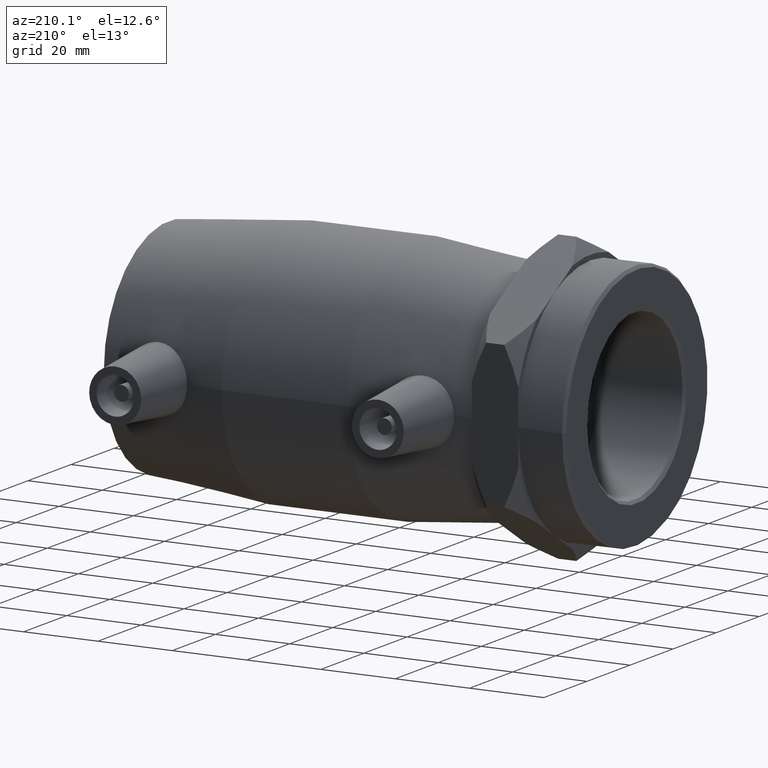
[diagram: clean part render]
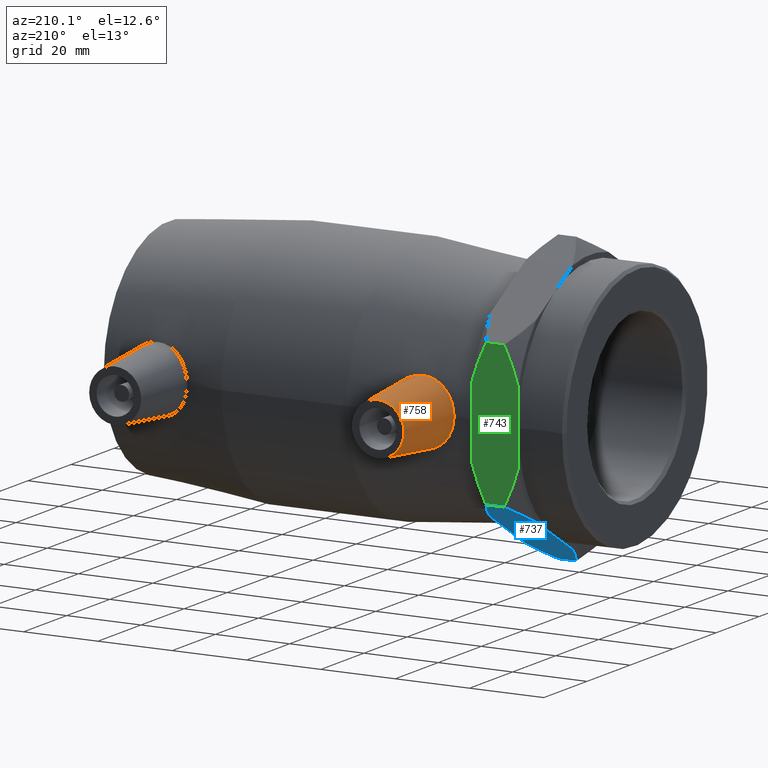
[diagram: same view with three faces highlighted in distinct colors, each labeled with its STEP entity id]
A machine part, auxiliary view with three faces highlighted in distinct colors.
Their STEP definitions:

[orange] entity #758 — the highlighted conical surface has half-angle 5 deg.
#16=B_SPLINE_CURVE_WITH_KNOTS('',3,(#1375,#1376,#1377,#1378,#1379,#1380,
#1381,#1382,#1383,#1384,#1385,#1386,#1387,#1388,#1389,#1390,#1391,#1392,
#1393,#1394,#1395,#1396,#1397,#1398,#1399,#1400,#1401,#1402,#1403,#1404,
#1405,#1406,#1407,#1408),.UNSPECIFIED.,.T.,.F.,(4,2,2,2,2,2,2,2,2,2,2,2,
2,2,2,2,4),(0.,0.323120499511999,0.646240999023999,0.971518984508685,1.29679696999337,
1.62207495547806,1.94735294096274,2.27047344047474,2.59359393998674,2.93729543235928,
3.28099692473182,3.61782069974539,3.95464447475896,4.29146824977254,4.62829202478611,
4.97199351715865,5.31569500953119),.UNSPECIFIED.);
#143=FACE_BOUND('',#274,.T.);
#199=FACE_OUTER_BOUND('',#273,.T.);
#273=EDGE_LOOP('',(#674));
#274=EDGE_LOOP('',(#675));
#329=CIRCLE('',#850,7.);
#398=VERTEX_POINT('',#1332);
#401=VERTEX_POINT('',#1374);
#493=EDGE_CURVE('',#398,#398,#329,.T.);
#496=EDGE_CURVE('',#401,#401,#16,.T.);
#674=ORIENTED_EDGE('',*,*,#493,.T.);
#675=ORIENTED_EDGE('',*,*,#496,.F.);
#708=CONICAL_SURFACE('',#854,7.,5.);
#758=ADVANCED_FACE('',(#199,#143),#708,.T.);
#850=AXIS2_PLACEMENT_3D('',#1333,#1057,#1058);
#854=AXIS2_PLACEMENT_3D('',#1373,#1065,#1066);
#1057=DIRECTION('center_axis',(0.,-1.,0.));
#1058=DIRECTION('ref_axis',(1.,0.,0.));
#1065=DIRECTION('center_axis',(0.,-1.,0.));
#1066=DIRECTION('ref_axis',(1.,0.,0.));
#1332=CARTESIAN_POINT('',(-42.35,51.,8.57252759403147E-16));
#1333=CARTESIAN_POINT('Origin',(-35.35,51.,0.));
#1373=CARTESIAN_POINT('Origin',(-35.35,51.,0.));
#1374=CARTESIAN_POINT('',(-35.6671886307007,30.3773904597837,8.79852904851299));
#1375=CARTESIAN_POINT('Ctrl Pts',(-35.6671886307007,30.3773904597837,8.79852904851299));
#1376=CARTESIAN_POINT('Ctrl Pts',(-36.7389640812576,30.2749537692277,8.76885921236681));
#1377=CARTESIAN_POINT('Ctrl Pts',(-37.879401717365,30.2304776062026,8.52339862615001));
#1378=CARTESIAN_POINT('Ctrl Pts',(-39.9668860140409,30.262944935348,7.5947666050826));
#1379=CARTESIAN_POINT('Ctrl Pts',(-40.9140788542704,30.3360778524557,6.91179446762884));
#1380=CARTESIAN_POINT('Ctrl Pts',(-42.406794360669,30.4982208570224,5.35717232340341));
#1381=CARTESIAN_POINT('Ctrl Pts',(-43.0528093111661,30.597943446048,4.37791662310557));
#1382=CARTESIAN_POINT('Ctrl Pts',(-43.9087505336002,30.742818161528,2.24157963899443));
#1383=CARTESIAN_POINT('Ctrl Pts',(-44.1185848733033,30.7849823962703,1.08425995161562));
#1384=CARTESIAN_POINT('Ctrl Pts',(-44.1185848733033,30.7849823962703,-1.08425995161562));
#1385=CARTESIAN_POINT('Ctrl Pts',(-43.9087505336002,30.742818161528,-2.24157963899443));
#1386=CARTESIAN_POINT('Ctrl Pts',(-43.0528093111661,30.597943446048,-4.37791662310557));
#1387=CARTESIAN_POINT('Ctrl Pts',(-42.406794360669,30.4982208570224,-5.35717232340341));
#1388=CARTESIAN_POINT('Ctrl Pts',(-40.9140788542704,30.3360778524557,-6.91179446762884));
#1389=CARTESIAN_POINT('Ctrl Pts',(-39.9668860140409,30.262944935348,-7.5947666050826));
#1390=CARTESIAN_POINT('Ctrl Pts',(-37.879401717365,30.2304776062026,-8.52339862615001));
#1391=CARTESIAN_POINT('Ctrl Pts',(-36.7389640812576,30.2749537692277,-8.76885921236681));
#1392=CARTESIAN_POINT('Ctrl Pts',(-34.5271469979322,30.4863518022889,-8.83008868950542));
#1393=CARTESIAN_POINT('Ctrl Pts',(-33.3200839499548,30.674268183196,-8.62298550936632));
#1394=CARTESIAN_POINT('Ctrl Pts',(-31.1104534237076,31.1373033650582,-7.73260105010648));
#1395=CARTESIAN_POINT('Ctrl Pts',(-30.1068287812536,31.4083006258617,-7.04980507731292));
#1396=CARTESIAN_POINT('Ctrl Pts',(-28.5383247413678,31.8778221183829,-5.47975321124123));
#1397=CARTESIAN_POINT('Ctrl Pts',(-27.8611902221542,32.1086415172993,-4.49200533932273));
#1398=CARTESIAN_POINT('Ctrl Pts',(-26.958168971404,32.4286967165414,-2.31382049434863));
#1399=CARTESIAN_POINT('Ctrl Pts',(-26.7327683113098,32.5149572125875,-1.12274591671191));
#1400=CARTESIAN_POINT('Ctrl Pts',(-26.7327683113098,32.5149572125875,1.12274591671191));
#1401=CARTESIAN_POINT('Ctrl Pts',(-26.958168971404,32.4286967165414,2.31382049434863));
#1402=CARTESIAN_POINT('Ctrl Pts',(-27.8611902221542,32.1086415172993,4.49200533932273));
#1403=CARTESIAN_POINT('Ctrl Pts',(-28.5383247413678,31.8778221183829,5.47975321124123));
#1404=CARTESIAN_POINT('Ctrl Pts',(-30.1068287812536,31.4083006258617,7.04980507731292));
#1405=CARTESIAN_POINT('Ctrl Pts',(-31.1104534237076,31.1373033650582,7.73260105010648));
#1406=CARTESIAN_POINT('Ctrl Pts',(-33.3200839499548,30.674268183196,8.62298550936632));
#1407=CARTESIAN_POINT('Ctrl Pts',(-34.5271469979322,30.4863518022889,8.83008868950542));
#1408=CARTESIAN_POINT('Ctrl Pts',(-35.6671886307007,30.3773904597837,8.79852904851299));

[blue] entity #737 — the highlighted planar face has unit normal (0, 0.5, -0.866).
#18=LINE('',#1264,#42);
#19=LINE('',#1266,#43);
#25=LINE('',#1275,#49);
#29=LINE('',#1280,#53);
#30=LINE('',#1281,#54);
#42=VECTOR('',#966,9.72299214552678);
#43=VECTOR('',#969,9.72299214552678);
#49=VECTOR('',#981,4.90000000000002);
#53=VECTOR('',#987,4.90000000000002);
#54=VECTOR('',#988,19.4459842910536);
#70=(
BOUNDED_CURVE()
B_SPLINE_CURVE(2,(#1159,#1160,#1161),.UNSPECIFIED.,.F.,.F.)
B_SPLINE_CURVE_WITH_KNOTS((3,3),(0.,1.03535849599883),.UNSPECIFIED.)
CURVE()
GEOMETRIC_REPRESENTATION_ITEM()
RATIONAL_B_SPLINE_CURVE((1.,1.00865828191503,1.))
REPRESENTATION_ITEM('')
);
#75=(
BOUNDED_CURVE()
B_SPLINE_CURVE(2,(#1188,#1189,#1190),.UNSPECIFIED.,.F.,.F.)
B_SPLINE_CURVE_WITH_KNOTS((3,3),(0.,1.03535849599883),.UNSPECIFIED.)
CURVE()
GEOMETRIC_REPRESENTATION_ITEM()
RATIONAL_B_SPLINE_CURVE((1.,1.00865828191501,1.))
REPRESENTATION_ITEM('')
);
#86=(
BOUNDED_CURVE()
B_SPLINE_CURVE(2,(#1248,#1249,#1250),.UNSPECIFIED.,.F.,.F.)
B_SPLINE_CURVE_WITH_KNOTS((3,3),(0.,1.03535849599883),.UNSPECIFIED.)
CURVE()
GEOMETRIC_REPRESENTATION_ITEM()
RATIONAL_B_SPLINE_CURVE((1.,1.00865828191498,1.))
REPRESENTATION_ITEM('')
);
#87=(
BOUNDED_CURVE()
B_SPLINE_CURVE(2,(#1254,#1255,#1256),.UNSPECIFIED.,.F.,.F.)
B_SPLINE_CURVE_WITH_KNOTS((3,3),(0.,1.03535849599883),.UNSPECIFIED.)
CURVE()
GEOMETRIC_REPRESENTATION_ITEM()
RATIONAL_B_SPLINE_CURVE((1.,1.00865828191503,1.))
REPRESENTATION_ITEM('')
);
#106=PLANE('',#820);
#178=FACE_OUTER_BOUND('',#240,.T.);
#240=EDGE_LOOP('',(#584,#585,#586,#587,#588,#589,#590,#591,#592));
#346=VERTEX_POINT('',#1119);
#357=VERTEX_POINT('',#1153);
#359=VERTEX_POINT('',#1158);
#366=VERTEX_POINT('',#1186);
#367=VERTEX_POINT('',#1187);
#382=VERTEX_POINT('',#1242);
#383=VERTEX_POINT('',#1246);
#384=VERTEX_POINT('',#1252);
#385=VERTEX_POINT('',#1253);
#429=EDGE_CURVE('',#359,#357,#70,.T.);
#437=EDGE_CURVE('',#366,#367,#75,.T.);
#454=EDGE_CURVE('',#382,#383,#86,.T.);
#455=EDGE_CURVE('',#384,#385,#87,.T.);
#459=EDGE_CURVE('',#346,#367,#18,.T.);
#460=EDGE_CURVE('',#359,#346,#19,.T.);
#466=EDGE_CURVE('',#385,#366,#25,.T.);
#470=EDGE_CURVE('',#382,#357,#29,.T.);
#471=EDGE_CURVE('',#383,#384,#30,.T.);
#584=ORIENTED_EDGE('',*,*,#437,.T.);
#585=ORIENTED_EDGE('',*,*,#459,.F.);
#586=ORIENTED_EDGE('',*,*,#460,.F.);
#587=ORIENTED_EDGE('',*,*,#429,.T.);
#588=ORIENTED_EDGE('',*,*,#470,.F.);
#589=ORIENTED_EDGE('',*,*,#454,.T.);
#590=ORIENTED_EDGE('',*,*,#471,.T.);
#591=ORIENTED_EDGE('',*,*,#455,.T.);
#592=ORIENTED_EDGE('',*,*,#466,.T.);
#737=ADVANCED_FACE('',(#178),#106,.T.);
#820=AXIS2_PLACEMENT_3D('',#1279,#985,#986);
#966=DIRECTION('',(0.,-0.866025403784438,-0.500000000000001));
#969=DIRECTION('',(0.,-0.866025403784438,-0.500000000000001));
#981=DIRECTION('',(-1.,0.,0.));
#985=DIRECTION('center_axis',(0.,0.500000000000001,-0.866025403784438));
#986=DIRECTION('ref_axis',(0.,-0.866025403784438,-0.500000000000001));
#987=DIRECTION('',(-1.,0.,0.));
#988=DIRECTION('',(0.,-0.866025403784438,-0.500000000000001));
#1119=CARTESIAN_POINT('',(-63.,16.75,-29.0118510267787));
#1153=CARTESIAN_POINT('',(-59.2,33.5,-19.3412340178524));
#1158=CARTESIAN_POINT('',(-63.,25.1703581988228,-24.1503549540153));
#1159=CARTESIAN_POINT('Ctrl Pts',(-63.,25.1703581988228,-24.1503549540153));
#1160=CARTESIAN_POINT('Ctrl Pts',(-61.7287681445462,29.1200450930844,-21.8700021623986));
#1161=CARTESIAN_POINT('Ctrl Pts',(-59.2,33.5,-19.3412340178524));
#1186=CARTESIAN_POINT('',(-59.2,4.88498130835069E-14,-38.6824680357049));
#1187=CARTESIAN_POINT('',(-63.,8.32964180117729,-33.8733470995421));
#1188=CARTESIAN_POINT('Ctrl Pts',(-59.2,5.60434388960021E-14,-38.6824680357049));
#1189=CARTESIAN_POINT('Ctrl Pts',(-61.7287681445462,4.37995490691574,-36.1536998911587));
#1190=CARTESIAN_POINT('Ctrl Pts',(-63.,8.32964180117726,-33.8733470995421));
#1242=CARTESIAN_POINT('',(-54.3,33.5,-19.3412340178524));
#1246=CARTESIAN_POINT('',(-50.5,25.1703581988228,-24.1503549540153));
#1248=CARTESIAN_POINT('Ctrl Pts',(-54.3,33.5,-19.3412340178524));
#1249=CARTESIAN_POINT('Ctrl Pts',(-51.7712318554538,29.1200450930843,-21.8700021623986));
#1250=CARTESIAN_POINT('Ctrl Pts',(-50.5,25.1703581988228,-24.1503549540153));
#1252=CARTESIAN_POINT('',(-50.5,8.32964180117729,-33.8733470995421));
#1253=CARTESIAN_POINT('',(-54.3,4.21884749357559E-14,-38.6824680357049));
#1254=CARTESIAN_POINT('Ctrl Pts',(-50.5,8.32964180117728,-33.8733470995421));
#1255=CARTESIAN_POINT('Ctrl Pts',(-51.7712318554538,4.37995490691577,-36.1536998911587));
#1256=CARTESIAN_POINT('Ctrl Pts',(-54.3,7.00542986200027E-14,-38.6824680357049));
#1264=CARTESIAN_POINT('',(-63.,33.5,-19.3412340178524));
#1266=CARTESIAN_POINT('',(-63.,33.5,-19.3412340178524));
#1275=CARTESIAN_POINT('',(-50.5,5.19510080595559E-14,-38.6824680357049));
#1279=CARTESIAN_POINT('Origin',(-50.5,33.5,-19.3412340178524));
#1280=CARTESIAN_POINT('',(-50.5,33.5,-19.3412340178524));
#1281=CARTESIAN_POINT('',(-50.5,33.5,-19.3412340178524));

[green] entity #743 — the highlighted planar face has unit normal (0, 1, 0).
#20=LINE('',#1267,#44);
#29=LINE('',#1280,#53);
#31=LINE('',#1283,#55);
#36=LINE('',#1290,#60);
#40=LINE('',#1297,#64);
#44=VECTOR('',#970,9.72299214552682);
#53=VECTOR('',#987,4.90000000000002);
#55=VECTOR('',#991,9.72299214552682);
#60=VECTOR('',#1000,4.90000000000002);
#64=VECTOR('',#1010,19.4459842910536);
#65=(
BOUNDED_CURVE()
B_SPLINE_CURVE(2,(#1133,#1134,#1135),.UNSPECIFIED.,.F.,.F.)
B_SPLINE_CURVE_WITH_KNOTS((3,3),(0.,1.03535849599883),.UNSPECIFIED.)
CURVE()
GEOMETRIC_REPRESENTATION_ITEM()
RATIONAL_B_SPLINE_CURVE((1.,1.00865828191498,1.))
REPRESENTATION_ITEM('')
);
#69=(
BOUNDED_CURVE()
B_SPLINE_CURVE(2,(#1155,#1156,#1157),.UNSPECIFIED.,.F.,.F.)
B_SPLINE_CURVE_WITH_KNOTS((3,3),(0.,1.03535849599883),.UNSPECIFIED.)
CURVE()
GEOMETRIC_REPRESENTATION_ITEM()
RATIONAL_B_SPLINE_CURVE((1.,1.008658281915,1.))
REPRESENTATION_ITEM('')
);
#81=(
BOUNDED_CURVE()
B_SPLINE_CURVE(2,(#1221,#1222,#1223),.UNSPECIFIED.,.F.,.F.)
B_SPLINE_CURVE_WITH_KNOTS((3,3),(0.,1.03535849599883),.UNSPECIFIED.)
CURVE()
GEOMETRIC_REPRESENTATION_ITEM()
RATIONAL_B_SPLINE_CURVE((1.,1.00865828191498,1.))
REPRESENTATION_ITEM('')
);
#85=(
BOUNDED_CURVE()
B_SPLINE_CURVE(2,(#1243,#1244,#1245),.UNSPECIFIED.,.F.,.F.)
B_SPLINE_CURVE_WITH_KNOTS((3,3),(0.,1.03535849599883),.UNSPECIFIED.)
CURVE()
GEOMETRIC_REPRESENTATION_ITEM()
RATIONAL_B_SPLINE_CURVE((1.,1.00865828191497,1.))
REPRESENTATION_ITEM('')
);
#112=PLANE('',#826);
#184=FACE_OUTER_BOUND('',#246,.T.);
#246=EDGE_LOOP('',(#628,#629,#630,#631,#632,#633,#634,#635,#636));
#345=VERTEX_POINT('',#1118);
#351=VERTEX_POINT('',#1131);
#352=VERTEX_POINT('',#1132);
#357=VERTEX_POINT('',#1153);
#358=VERTEX_POINT('',#1154);
#375=VERTEX_POINT('',#1219);
#376=VERTEX_POINT('',#1220);
#381=VERTEX_POINT('',#1241);
#382=VERTEX_POINT('',#1242);
#422=EDGE_CURVE('',#351,#352,#65,.T.);
#428=EDGE_CURVE('',#357,#358,#69,.T.);
#446=EDGE_CURVE('',#375,#376,#81,.T.);
#452=EDGE_CURVE('',#381,#382,#85,.T.);
#461=EDGE_CURVE('',#345,#358,#20,.T.);
#470=EDGE_CURVE('',#382,#357,#29,.T.);
#472=EDGE_CURVE('',#351,#345,#31,.T.);
#477=EDGE_CURVE('',#375,#352,#36,.T.);
#481=EDGE_CURVE('',#376,#381,#40,.T.);
#628=ORIENTED_EDGE('',*,*,#428,.T.);
#629=ORIENTED_EDGE('',*,*,#461,.F.);
#630=ORIENTED_EDGE('',*,*,#472,.F.);
#631=ORIENTED_EDGE('',*,*,#422,.T.);
#632=ORIENTED_EDGE('',*,*,#477,.F.);
#633=ORIENTED_EDGE('',*,*,#446,.T.);
#634=ORIENTED_EDGE('',*,*,#481,.T.);
#635=ORIENTED_EDGE('',*,*,#452,.T.);
#636=ORIENTED_EDGE('',*,*,#470,.T.);
#743=ADVANCED_FACE('',(#184),#112,.T.);
#826=AXIS2_PLACEMENT_3D('',#1296,#1008,#1009);
#970=DIRECTION('',(0.,1.60725239458925E-15,-1.));
#987=DIRECTION('',(-1.,0.,0.));
#991=DIRECTION('',(0.,1.60725239458925E-15,-1.));
#1000=DIRECTION('',(-1.,0.,0.));
#1008=DIRECTION('center_axis',(0.,1.,1.60725239458925E-15));
#1009=DIRECTION('ref_axis',(0.,1.4210854715202E-15,-1.));
#1010=DIRECTION('',(0.,1.60725239458925E-15,-1.));
#1118=CARTESIAN_POINT('',(-63.,33.5,5.38429552187397E-14));
#1131=CARTESIAN_POINT('',(-63.,33.5,9.72299214552687));
#1132=CARTESIAN_POINT('',(-59.2,33.5,19.3412340178525));
#1133=CARTESIAN_POINT('Ctrl Pts',(-63.,33.5,9.72299214552688));
#1134=CARTESIAN_POINT('Ctrl Pts',(-61.7287681445462,33.5,14.2836977287602));
#1135=CARTESIAN_POINT('Ctrl Pts',(-59.2,33.5,19.3412340178525));
#1153=CARTESIAN_POINT('',(-59.2,33.5,-19.3412340178524));
#1154=CARTESIAN_POINT('',(-63.,33.5,-9.72299214552676));
#1155=CARTESIAN_POINT('Ctrl Pts',(-59.2,33.5,-19.3412340178524));
#1156=CARTESIAN_POINT('Ctrl Pts',(-61.7287681445462,33.5,-14.2836977287601));
#1157=CARTESIAN_POINT('Ctrl Pts',(-63.,33.5,-9.72299214552678));
#1219=CARTESIAN_POINT('',(-54.3,33.5,19.3412340178525));
#1220=CARTESIAN_POINT('',(-50.5,33.5,9.72299214552687));
#1221=CARTESIAN_POINT('Ctrl Pts',(-54.3,33.5,19.3412340178525));
#1222=CARTESIAN_POINT('Ctrl Pts',(-51.7712318554538,33.5,14.2836977287601));
#1223=CARTESIAN_POINT('Ctrl Pts',(-50.5,33.5,9.72299214552688));
#1241=CARTESIAN_POINT('',(-50.5,33.5,-9.72299214552676));
#1242=CARTESIAN_POINT('',(-54.3,33.5,-19.3412340178524));
#1243=CARTESIAN_POINT('Ctrl Pts',(-50.5,33.5,-9.72299214552678));
#1244=CARTESIAN_POINT('Ctrl Pts',(-51.7712318554538,33.5,-14.28369772876));
#1245=CARTESIAN_POINT('Ctrl Pts',(-54.3,33.5,-19.3412340178524));
#1267=CARTESIAN_POINT('',(-63.,33.5,19.3412340178525));
#1280=CARTESIAN_POINT('',(-50.5,33.5,-19.3412340178524));
#1283=CARTESIAN_POINT('',(-63.,33.5,19.3412340178525));
#1290=CARTESIAN_POINT('',(-50.5,33.5,19.3412340178525));
#1296=CARTESIAN_POINT('Origin',(-50.5,33.5,5.32907051820075E-14));
#1297=CARTESIAN_POINT('',(-50.5,33.5,19.3412340178525));